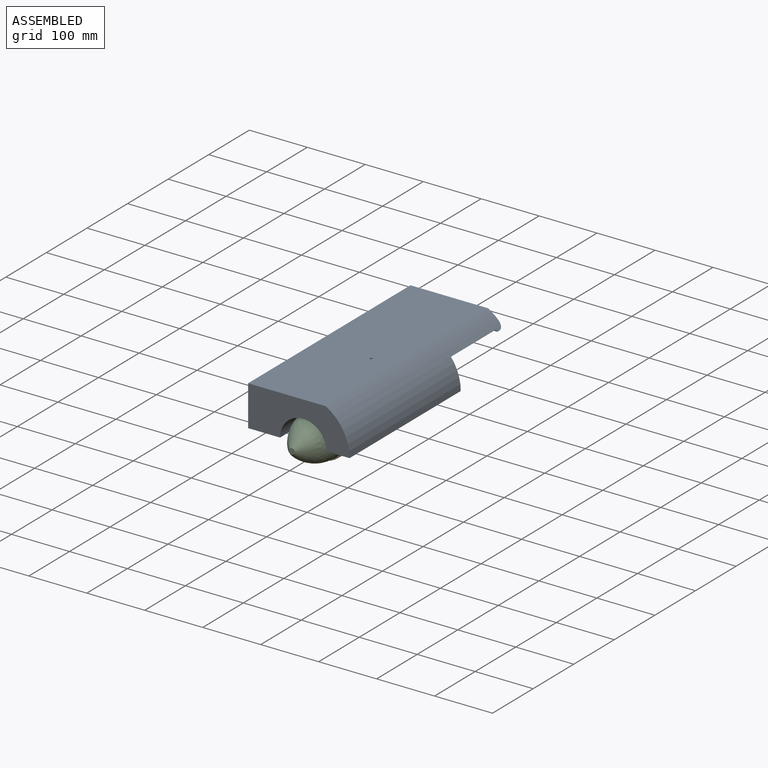
[diagram: assembled view]
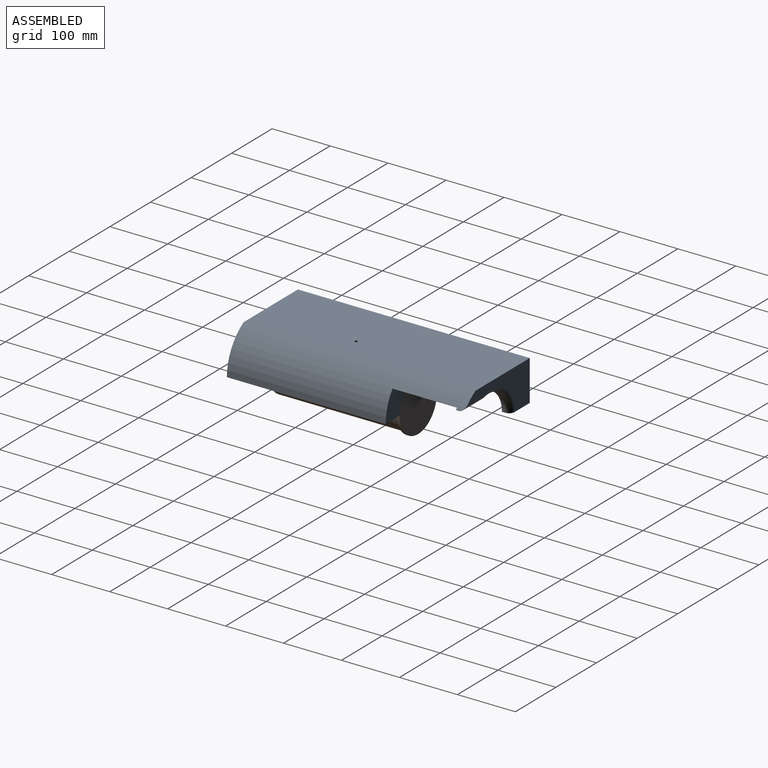
[diagram: assembled view, second angle]
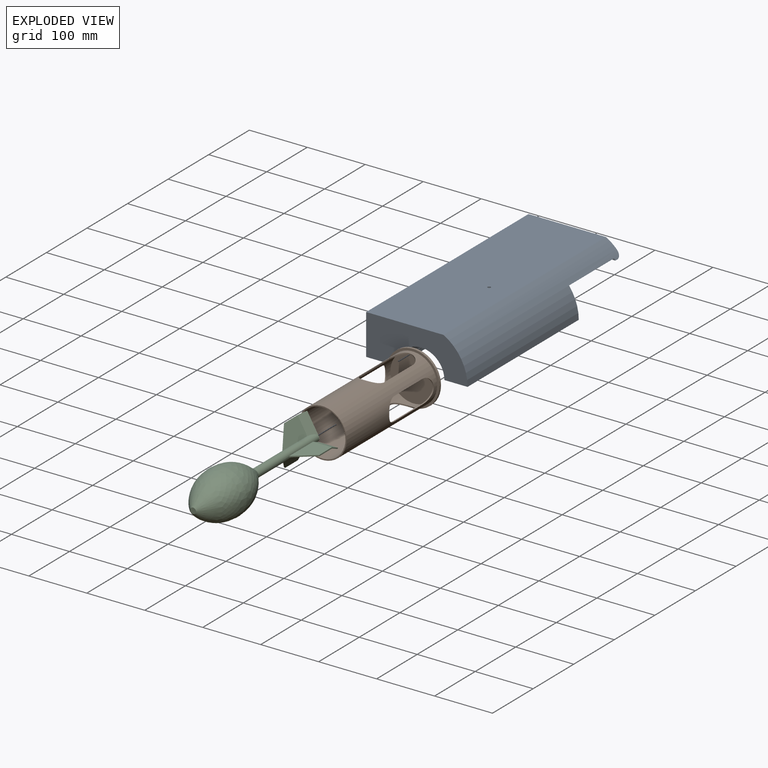
[diagram: exploded view]
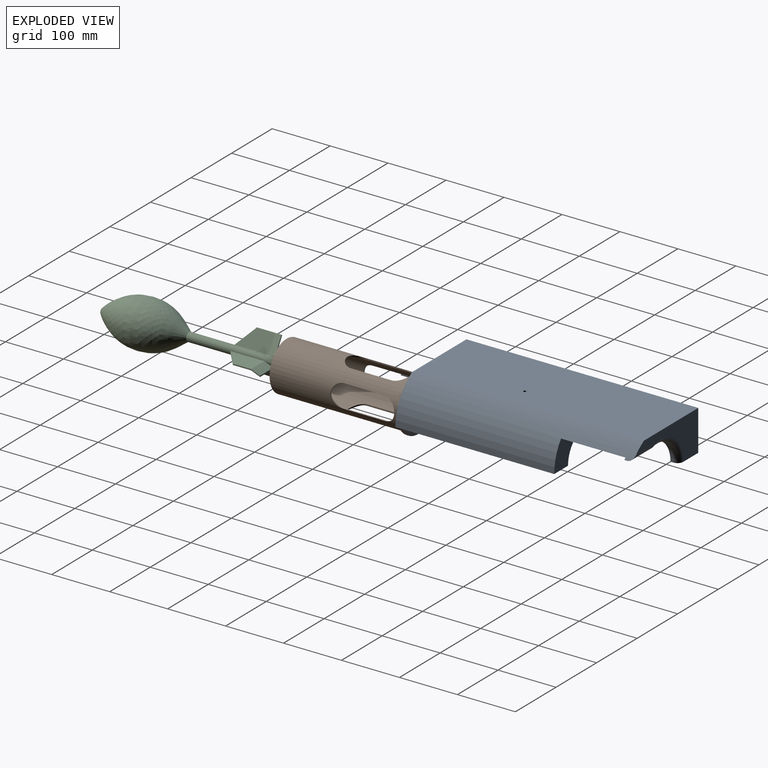
[diagram: exploded view, second angle]
ASSEMBLY  parts=3 mates=2
PART A: 38 faces, bbox 175x400x70.5 mm
  f0: cylinder r=44mm len=44mm, axis (0,-1,0), area 335.7mm2, adj f9,f10,f33,f37
  f1: cylinder r=44mm len=44mm, axis (0,-1,0), area 335.8mm2, adj f9,f10,f32,f37
  f2: plane 152.13x70mm, normal (0,-1,0), area 4671.7mm2, adj f7,f16,f17,f34,f35,f36
  f3: plane 175x70mm, normal (0,1,0), area 8901.7mm2, adj f7,f14,f16,f17,f32,f33
  f4: plane 160.45x49mm, normal (0,1,0), area 3020.2mm2, adj f7,f13,f16,f18,f19,f34
  f5: plane 175x49mm, normal (0,-1,0), area 4990mm2, adj f6,f7,f16,f19,f32,f33
  f6: cylinder r=46mm len=92mm, axis (0,-1,0), area 578.1mm2, adj f5,f12,f32,f33
  f7: plane 400x70mm, normal (1,0,0), area 22081mm2, adj f2,f3,f4,f5,f17,f19,f23,f24
  f8: cylinder r=42mm len=118mm, axis (0,-1,0), area 15569.7mm2, adj f9,f15,f32,f33
  f9: plane 88x44mm, normal (0,-1,0), area 270.2mm2, adj f0,f1,f8,f32,f33
  f10: plane 88x44mm, normal (0,1,0), area 270.2mm2, adj f0,f1,f11,f32,f33
  f11: cylinder r=42mm len=100mm, axis (0,-1,0), area 13194.7mm2, adj f10,f12,f32,f33
  f12: plane 92x46mm, normal (0,-1,0), area 552.9mm2, adj f6,f11,f32,f33
  f13: cylinder r=48mm len=61.71mm, axis (0,-1,0), area 446.5mm2, adj f4,f18,f34,f35
  f14: cylinder r=40mm len=80mm, axis (0,-1,0), area 5906.2mm2, adj f3,f15,f32,f33
  f15: plane 84x42mm, normal (0,-1,0), area 257.6mm2, adj f8,f14,f32,f33
  f16: cylinder r=80mm len=400mm, axis (0,-1,0), area 27478mm2, adj f2,f3,f4,f5,f17,f18,f19,f32
  f17: plane 400x133.73mm, normal (0,0,1), area 53472.3mm2, adj f2,f3,f7,f16,f37
  f18: plane 51.74x5mm, normal (0,0,-1), area 258.7mm2, adj f4,f13,f16,f36
  f19: plane 158.24x111mm, normal (0,0,-1), area 9164.4mm2, adj f4,f5,f7,f16,f20,f21,f22,f24
  f20: plane 20x10mm, normal (1,0,0), area 160mm2, adj f19,f23,f24,f31
  f21: plane 20x10mm, normal (1,0,0), area 160mm2, adj f19,f28,f29,f30
  f22: plane 20x10mm, normal (1,0,0), area 160mm2, adj f19,f25,f26,f27
  f23: plane 140x12mm, normal (0,0,-1), area 1680mm2, adj f7,f20,f24,f31
  f24: plane 140x10mm, normal (0,1,0), area 1400mm2, adj f7,f19,f20,f23
  f25: plane 140x10mm, normal (0,-0.78,-0.62), area 1792.9mm2, adj f7,f19,f22,f26
  f26: plane 140x12mm, normal (0,0,-1), area 1680mm2, adj f7,f22,f25,f27
  f27: plane 140x10mm, normal (0,1,0), area 1400mm2, adj f7,f19,f22,f26
  f28: plane 140x10mm, normal (0,-0.78,-0.62), area 1792.9mm2, adj f7,f19,f21,f29
  f29: plane 140x12mm, normal (0,0,-1), area 1680mm2, adj f7,f21,f28,f30
  f30: plane 140x10mm, normal (0,1,0), area 1400mm2, adj f7,f19,f21,f29
  f31: plane 140x10mm, normal (0,-0.78,-0.62), area 1792.9mm2, adj f7,f19,f20,f23
  f32: plane 274x40mm, normal (0,0,-1), area 10480mm2, adj f1,f3,f5,f6,f8,f9,f10,f11
  f33: plane 274x55mm, normal (0,0,-1), area 14590mm2, adj f0,f3,f5,f6,f7,f8,f9,f10
  f34: plane 47x15mm, normal (0,0,-1), area 683.5mm2, adj f2,f4,f7,f13,f35
  f35: torus R=58mm, axis (0,-1,0), area 1500.4mm2, adj f2,f13,f34,f36
  f36: cylinder r=10mm len=51.74mm, axis (1,0,0), area 760.1mm2, adj f2,f16,f18,f35
  f37: cylinder r=2.5mm len=26mm, axis (0,0,-1), area 408.4mm2, adj f0,f1,f17
PART B: 23 faces, bbox 92x227x92 mm
  f0: cylinder r=42mm len=223mm, axis (0,-1,0), area 41994.4mm2, adj f2,f6,f7,f8,f9,f10,f11,f12
  f1: cylinder r=40mm len=225mm, axis (0,-1,0), area 39622.4mm2, adj f2,f3,f7,f8,f9,f10,f11,f12
  f2: plane 84x84mm, normal (0,-1,0), area 515.2mm2, adj f0,f1
  f3: plane 80x80mm, normal (0,-1,0), area 5026.5mm2, adj f1
  f4: plane 92x92mm, normal (0,1,0), area 6647.6mm2, adj f5
  f5: cylinder r=46mm len=92mm, axis (0,-1,0), area 1156.1mm2, adj f4,f6
  f6: plane 92x92mm, normal (0,-1,0), area 1105.8mm2, adj f0,f5
  f7: plane 70x2.29mm, normal (0,0,-1), area 160.4mm2, adj f0,f1,f8,f10
  f8: cylinder r=20mm len=40mm, axis (1,0,0), area 134.3mm2, adj f0,f1,f7,f9
  f9: plane 70x2.29mm, normal (0,0,1), area 160.4mm2, adj f0,f1,f8,f10
  f10: cylinder r=20mm len=40mm, axis (1,0,0), area 134.4mm2, adj f0,f1,f7,f9
  f11: cylinder r=20mm len=40mm, axis (1,0,0), area 134.3mm2, adj f0,f1,f12,f14
  f12: plane 70x2.29mm, normal (0,0,1), area 160.4mm2, adj f0,f1,f11,f13
  f13: cylinder r=20mm len=40mm, axis (1,0,0), area 134.3mm2, adj f0,f1,f12,f14
  f14: plane 70x2.29mm, normal (0,0,-1), area 160.4mm2, adj f0,f1,f11,f13
  f15: plane 70x2.29mm, normal (1,0,0), area 160.4mm2, adj f0,f1,f16,f18
  f16: cylinder r=20mm len=40mm, axis (0,0,1), area 134.3mm2, adj f0,f1,f15,f17
  f17: plane 70x2.29mm, normal (-1,0,0), area 160.4mm2, adj f0,f1,f16,f18
  f18: cylinder r=20mm len=40mm, axis (0,0,1), area 134.4mm2, adj f0,f1,f15,f17
  f19: cylinder r=20mm len=40mm, axis (0,0,1), area 134.3mm2, adj f0,f1,f20,f22
  f20: plane 70x2.29mm, normal (-1,0,0), area 160.4mm2, adj f0,f1,f19,f21
  f21: cylinder r=20mm len=40mm, axis (0,0,1), area 134.4mm2, adj f0,f1,f20,f22
  f22: plane 70x2.29mm, normal (1,0,0), area 160.4mm2, adj f0,f1,f19,f21
PART C: 28 faces, bbox 80x300x80 mm
  f0: plane 69.34x65.76mm, normal (0,1,0), area 392.5mm2, adj f4,f5,f7,f9,f14,f15,f16,f25
  f1: plane 58.76x32.55mm, normal (0,0,1), area 1468.4mm2, adj f3,f5,f16,f27
  f2: plane 58.76x32.55mm, normal (0,0,-1), area 1468.4mm2, adj f3,f4,f16,f27
  f3: plane 32.57x27.33mm, normal (-0.64,-0.77,0), area 84.9mm2, adj f1,f2,f16,f27
  f4: plane 34.9x15mm, normal (0,0.4,-0.92), area 539.8mm2, adj f0,f2,f16,f27
  f5: plane 39.99x15mm, normal (0,-0.4,0.92), area 557.2mm2, adj f0,f1,f16,f27
  f6: plane 29.19x27.33mm, normal (0.32,-0.77,-0.56), area 84.9mm2, adj f8,f10,f16,f26
  f7: plane 31.12x23.07mm, normal (0.79,0.4,0.46), area 539.8mm2, adj f0,f8,f16,f26
  f8: plane 58.76x28.19mm, normal (0.87,0,0.5), area 1468.4mm2, adj f6,f7,f16,f26
  f9: plane 34.03x25.62mm, normal (-0.79,-0.4,-0.46), area 557.2mm2, adj f0,f10,f16,f26
  f10: plane 58.76x28.19mm, normal (-0.87,0,-0.5), area 1468.4mm2, adj f6,f9,f16,f26
  f11: plane 58.76x28.19mm, normal (0.87,0,-0.5), area 1468.4mm2, adj f13,f15,f16,f25
  f12: plane 58.76x28.19mm, normal (-0.87,0,0.5), area 1468.4mm2, adj f13,f14,f16,f25
  f13: plane 29.19x27.33mm, normal (0.32,-0.77,0.56), area 84.9mm2, adj f11,f12,f16,f25
  f14: plane 33.46x21.72mm, normal (-0.79,0.4,0.46), area 539.8mm2, adj f0,f12,f16,f25
  f15: plane 37.88x21.56mm, normal (0.79,-0.4,-0.46), area 557.2mm2, adj f0,f11,f16,f25
  f16: cylinder r=7.5mm len=150mm, axis (0,1,0), area 6603.3mm2, adj f0,f1,f2,f3,f4,f5,f6,f7
  f17: cylinder r=40mm len=80mm, axis (0,1,0), area 31.4mm2, adj f22,f24
  f18: cone r=15mm half-angle=35.5deg, axis (0,1,0), area 729.8mm2, adj f22,f23
  f19: cone r=5mm half-angle=45deg, axis (0,1,0), area 294.8mm2, adj f20,f23
  f20: plane 10x10mm, normal (0,-1,0), area 78.5mm2, adj f19
  f21: cone r=40mm half-angle=35.8deg, axis (0,-1,0), area 2388.9mm2, adj f16,f24
  f22: revolved ~80x80mm, area 24754.7mm2, adj f17,f18
  f23: revolved ~38.95x38.95mm, area 2832.7mm2, adj f18,f19
  f24: revolved ~80x80mm, area 24892.6mm2, adj f17,f21
  f25: cylinder r=40mm len=46.45mm, axis (0,-1,0), area 93mm2, adj f0,f11,f12,f13,f14,f15
  f26: cylinder r=40mm len=46.45mm, axis (0,-1,0), area 93mm2, adj f0,f6,f7,f8,f9,f10
  f27: cylinder r=40mm len=46.45mm, axis (0,-1,0), area 93mm2, adj f0,f1,f2,f3,f4,f5
PLACE A rot(axis=(0,0,-1),180deg) t=(30.57,-10.48,-8.54)mm fixed
PLACE B rot(axis=(0,1,0),180deg) t=(30.57,-88.48,-8.54)mm
PLACE C rot(axis=(0,1,0),180deg) t=(30.57,-88.48,-8.54)mm
MATE fastened B.f0 <-> C.f25  axis (0,-1,0) through (30.57,61.52,-8.54)mm
MATE slider B.f0 <-> A.f0  axis (0,-1,0) through (30.57,59.52,-8.54)mm
